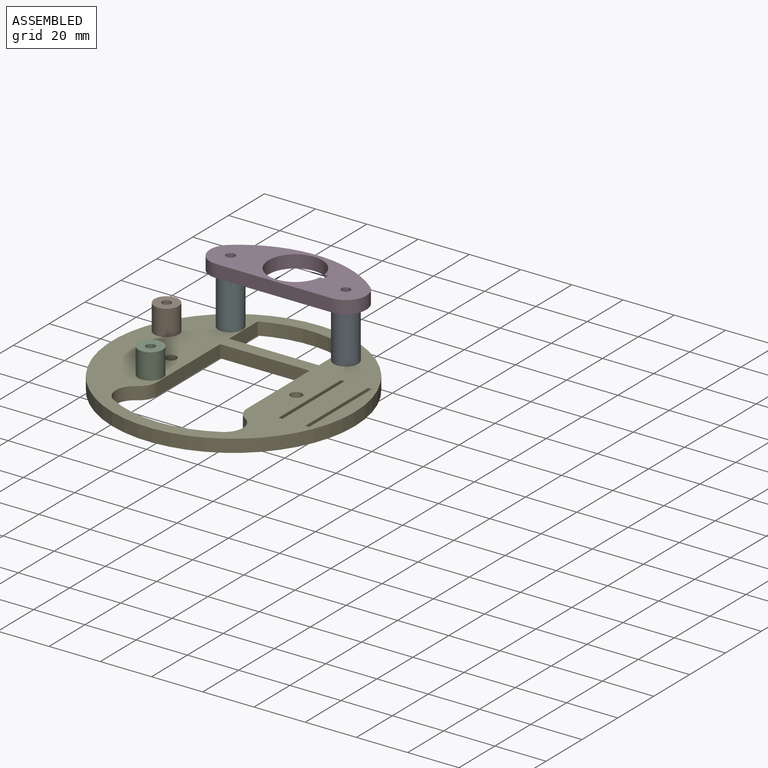
[diagram: assembled view]
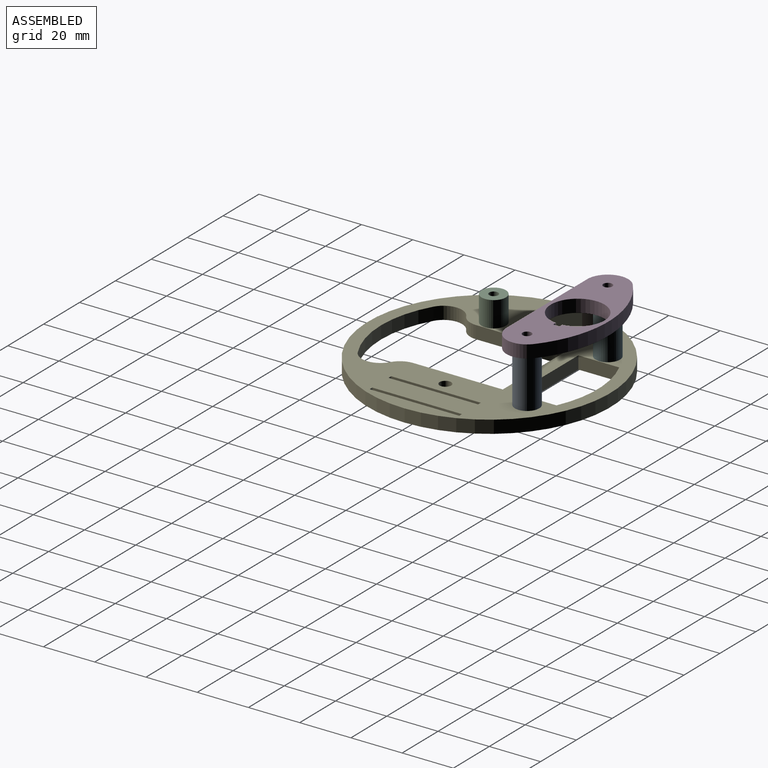
[diagram: assembled view, second angle]
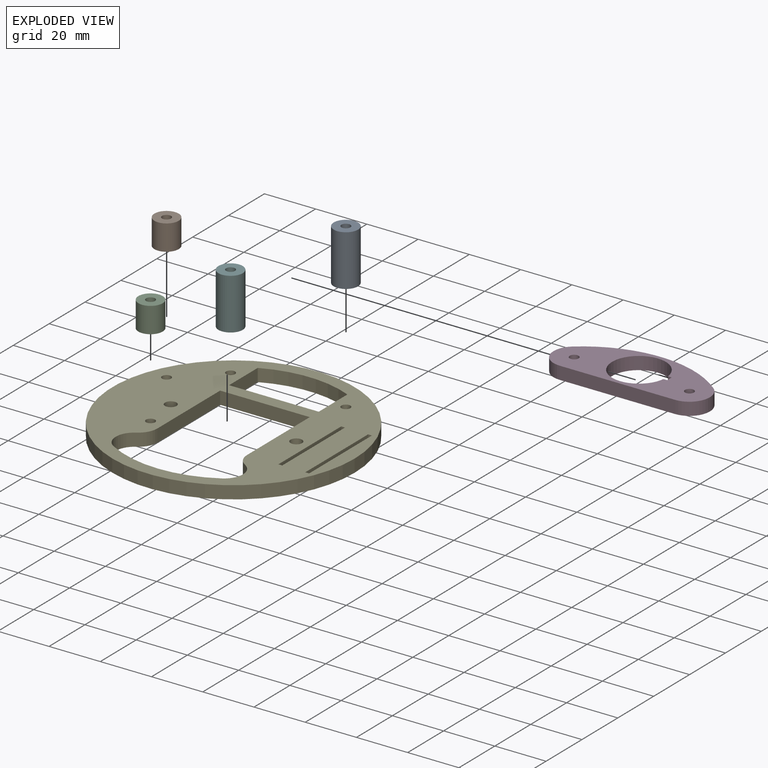
[diagram: exploded view]
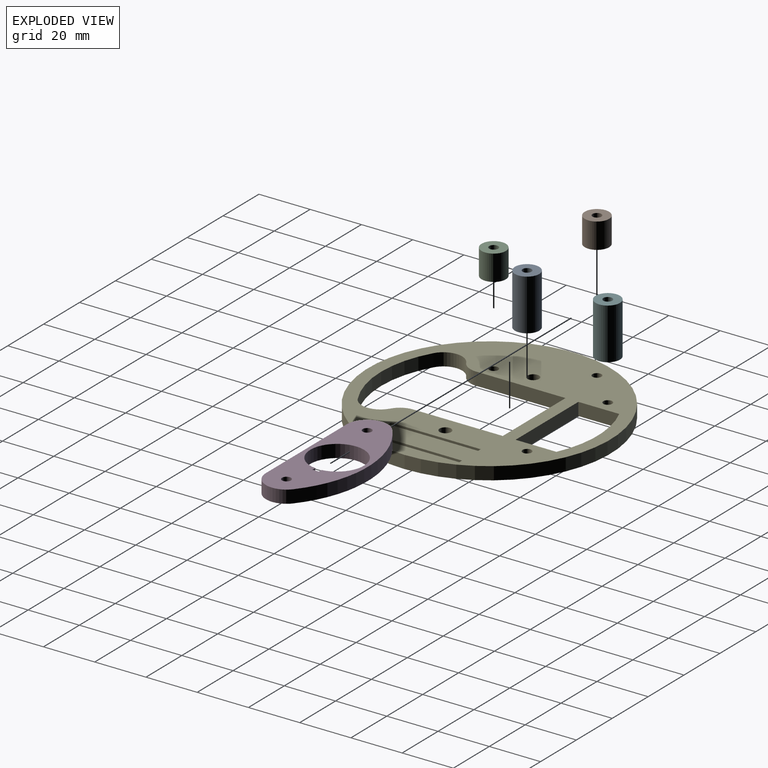
[diagram: exploded view, second angle]
ASSEMBLY  parts=6 mates=4
PART A: 4 faces, bbox 9.5x9.5x20 mm
  f0: cylinder r=1.75mm len=20mm, axis (0,0,-1), area 219.9mm2, adj f2,f3
  f1: cylinder r=4.75mm len=20mm, axis (0,0,-1), area 596.9mm2, adj f2,f3
  f2: plane 9.5x9.5mm, normal (0,0,1), area 61.3mm2, adj f0,f1
  f3: plane 9.5x9.5mm, normal (0,0,-1), area 61.3mm2, adj f0,f1
PART B: 4 faces, bbox 9.5x9.5x10 mm
  f0: cylinder r=1.75mm len=10mm, axis (0,0,-1), area 110mm2, adj f2,f3
  f1: cylinder r=4.75mm len=10mm, axis (0,0,-1), area 298.5mm2, adj f2,f3
  f2: plane 9.5x9.5mm, normal (0,0,1), area 61.3mm2, adj f0,f1
  f3: plane 9.5x9.5mm, normal (0,0,-1), area 61.3mm2, adj f0,f1
PART C: same geometry as B
PART D: 12 faces, bbox 61x24x5 mm
  f0: plane 5x1.5mm, normal (0,-1,0), area 7.5mm2, adj f1,f6,f10,f11
  f1: plane 5x2.5mm, normal (-1,0,0), area 12.5mm2, adj f0,f2,f10,f11
  f2: plane 5x1.5mm, normal (0,1,0), area 7.5mm2, adj f1,f6,f10,f11
  f3: cylinder r=43.64mm len=55.1mm, axis (0,0,-1), area 298.2mm2, adj f4,f7,f10,f11
  f4: cylinder r=8mm len=14.2mm, axis (0,0,-1), area 98.3mm2, adj f3,f5,f10,f11
  f5: plane 45x5mm, normal (0,-1,0), area 225mm2, adj f4,f7,f10,f11
  f6: cylinder r=10.5mm len=21mm, axis (0,0,-1), area 317.3mm2, adj f0,f2,f10,f11
  f7: cylinder r=8mm len=14.2mm, axis (0,0,-1), area 98.3mm2, adj f3,f5,f10,f11
  f8: cylinder r=1.75mm len=5mm, axis (0,0,-1), area 55mm2, adj f10,f11
  f9: cylinder r=1.75mm len=5mm, axis (0,0,-1), area 55mm2, adj f10,f11
  f10: plane 61x24mm, normal (0,0,1), area 827.4mm2, adj f0,f1,f2,f3,f4,f5,f6,f7
  f11: plane 61x24mm, normal (0,0,-1), area 827.4mm2, adj f0,f1,f2,f3,f4,f5,f6,f7
PART E: 29 faces, bbox 94.5x94.5x5 mm
  f0: plane 35x5mm, normal (1,0,0), area 175mm2, adj f1,f26,f27,f28
  f1: plane 35x5mm, normal (0,-1,0), area 175mm2, adj f0,f2,f27,f28
  f2: plane 35x5mm, normal (-1,0,0), area 175mm2, adj f1,f3,f27,f28
  f3: cylinder r=7.34mm len=6.36mm, axis (0,0,-1), area 38.4mm2, adj f2,f4,f27,f28
  f4: cylinder r=7.34mm len=12.71mm, axis (0,0,-1), area 76.8mm2, adj f3,f5,f27,f28
  f5: cylinder r=42.25mm len=42.33mm, axis (0,0,-1), area 221.7mm2, adj f4,f6,f27,f28
  f6: cylinder r=7.34mm len=12.71mm, axis (0,0,-1), area 76.8mm2, adj f5,f26,f27,f28
  f7: plane 35x5mm, normal (1,0,0), area 175mm2, adj f8,f23,f27,f28
  f8: plane 5x1.5mm, normal (0,-1,0), area 7.5mm2, adj f7,f9,f27,f28
  f9: plane 35x5mm, normal (-1,0,0), area 175mm2, adj f8,f23,f27,f28
  f10: plane 35x5mm, normal (1,0,0), area 175mm2, adj f11,f24,f27,f28
  f11: plane 5x1.5mm, normal (0,-1,0), area 7.5mm2, adj f10,f12,f27,f28
  f12: plane 35x5mm, normal (-1,0,0), area 175mm2, adj f11,f24,f27,f28
  f13: plane 15.96x5mm, normal (-1,0,0), area 79.8mm2, adj f14,f25,f27,f28
  f14: plane 35x5mm, normal (0,1,0), area 175mm2, adj f13,f15,f27,f28
  f15: plane 15.96x5mm, normal (1,0,0), area 79.8mm2, adj f14,f25,f27,f28
  f16: cylinder r=47.25mm len=94.5mm, axis (0,0,-1), area 1484.4mm2, adj f27,f28
  f17: cylinder r=2.25mm len=5mm, axis (0,0,-1), area 70.7mm2, adj f27,f28
  f18: cylinder r=2.25mm len=5mm, axis (0,0,-1), area 70.7mm2, adj f27,f28
  f19: cylinder r=1.75mm len=5mm, axis (0,0,-1), area 55mm2, adj f27,f28
  f20: cylinder r=1.75mm len=5mm, axis (0,0,-1), area 55mm2, adj f27,f28
  f21: cylinder r=1.75mm len=5mm, axis (0,0,-1), area 55mm2, adj f27,f28
  f22: cylinder r=1.75mm len=5mm, axis (0,0,-1), area 55mm2, adj f27,f28
  f23: plane 5x1.5mm, normal (0,1,0), area 7.5mm2, adj f7,f9,f27,f28
  f24: plane 5x1.5mm, normal (0,1,0), area 7.5mm2, adj f10,f12,f27,f28
  f25: cylinder r=42.25mm len=35mm, axis (0,0,-1), area 180.4mm2, adj f13,f15,f27,f28
  f26: cylinder r=7.34mm len=6.36mm, axis (0,0,-1), area 38.4mm2, adj f0,f6,f27,f28
  f27: plane 94.5x94.5mm, normal (0,0,1), area 3962.9mm2, adj f0,f1,f2,f3,f4,f5,f6,f7
  f28: plane 94.5x94.5mm, normal (0,0,-1), area 3962.9mm2, adj f0,f1,f2,f3,f4,f5,f6,f7
PART F: same geometry as A
PLACE A t=(22.5,30.48,5)mm
PLACE B t=(-37.28,15.9,5)mm
PLACE C t=(-22.55,-14.08,5)mm
PLACE D at identity
PLACE E at identity fixed
PLACE F t=(-22.5,30.48,5)mm
MATE fastened C.f1 <-> E.f20  axis (0,0,-1) through (-22.55,-14.08,5)mm
MATE fastened A.f1 <-> E.f19  axis (0,0,-1) through (22.5,30.48,5)mm
MATE fastened F.f1 <-> E.f22  axis (0,0,-1) through (-22.5,30.48,5)mm
MATE fastened B.f0 <-> E.f21  axis (0,0,-1) through (-37.28,15.9,5)mm
